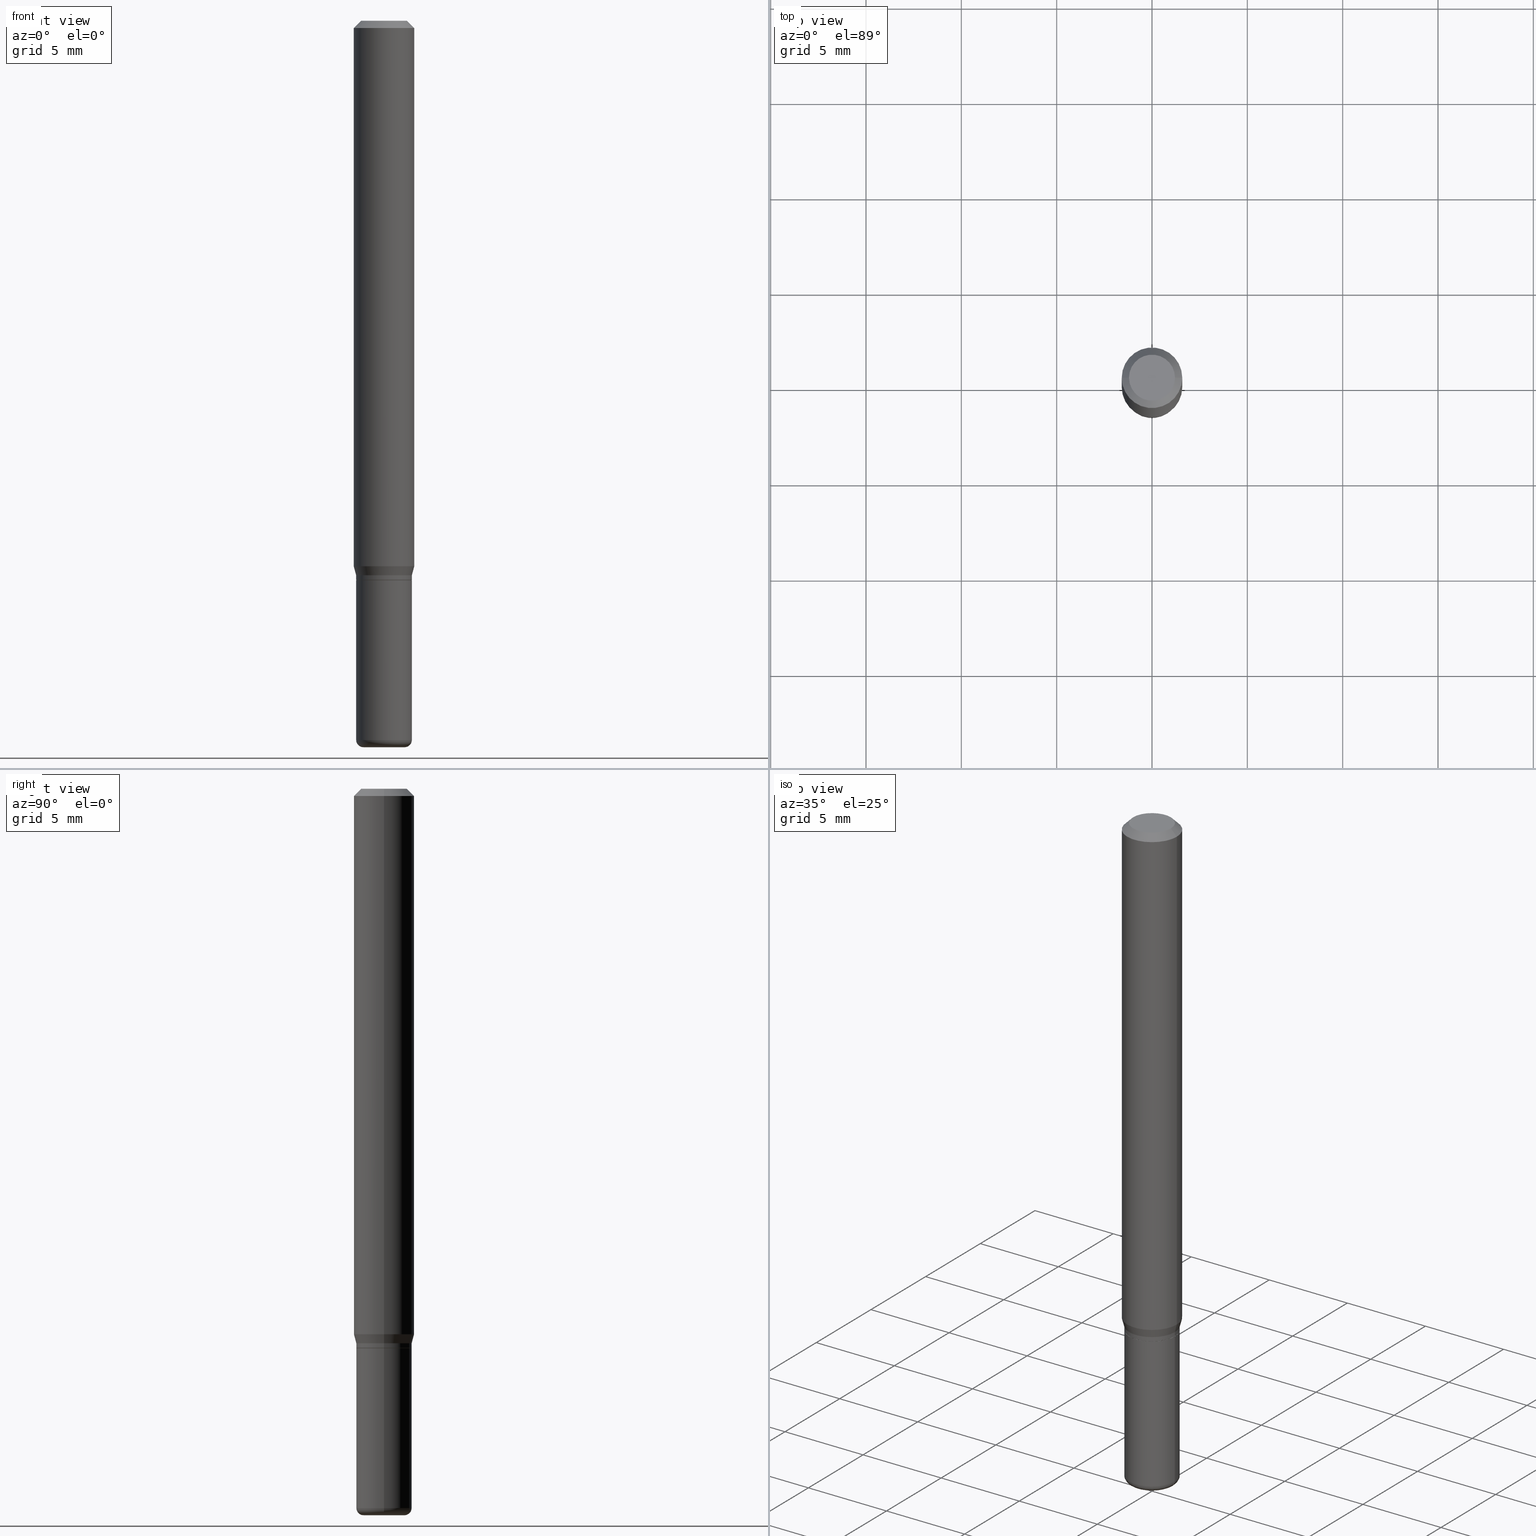
[diagram: canonical four-view strip — front | top / right | iso, engineering-drawing reading convention]
A machine part, canonical four-view strip (front | top / right | iso — engineering-drawing reading convention). The complete STEP part file that produces these views, byte-faithful:
ISO-10303-21;
HEADER;
FILE_DESCRIPTION (( 'STEP AP203' ),
    '1' );
FILE_NAME ('09251.STEP',
    '2024-03-01T00:00:59',
    ( '' ),
    ( '' ),
    'SwSTEP 2.0',
    'SolidWorks 2023',
    '' );
FILE_SCHEMA (( 'CONFIG_CONTROL_DESIGN' ));
ENDSEC;

DATA;
#1 = PRODUCT_RELATED_PRODUCT_CATEGORY ( 'detail', '', ( #122 ) ) ;
#2 = AXIS2_PLACEMENT_3D ( 'NONE', #145, #188, #191 ) ;
#3 = CARTESIAN_POINT ( 'NONE',  ( -0.05750000000000000250, -4.200193294210894862E-15, -1.155000000000000027 ) ) ;
#4 = DIRECTION ( 'NONE',  ( -2.445468806185136597E-29, 3.491481338843145583E-15, 1.000000000000000000 ) ) ;
#5 = DIRECTION ( 'NONE',  ( 1.000000000000000000, -6.982962677686266711E-15, 4.876176775795935232E-29 ) ) ;
#6 = EDGE_LOOP ( 'NONE', ( #377, #406, #460, #33 ) ) ;
#7 = PERSON_AND_ORGANIZATION_ROLE ( 'design_supplier' ) ;
#8 = AXIS2_PLACEMENT_3D ( 'NONE', #435, #236, #79 ) ;
#9 = ORIENTED_EDGE ( 'NONE', *, *, #300, .F. ) ;
#10 = LINE ( 'NONE', #383, #125 ) ;
#11 = AXIS2_PLACEMENT_3D ( 'NONE', #370, #378, #450 ) ;
#12 = APPROVAL_ROLE ( '' ) ;
#13 = APPLICATION_PROTOCOL_DEFINITION ( 'international standard', 'config_control_design', 1994, #342 ) ;
#14 = DIRECTION ( 'NONE',  ( 2.445468806185136597E-29, -3.491481338843145583E-15, -1.000000000000000000 ) ) ;
#15 = DIRECTION ( 'NONE',  ( -2.438088387897960049E-29, 3.491481338843145188E-15, 1.000000000000000000 ) ) ;
#16 = APPROVAL_ROLE ( '' ) ;
#17 = EDGE_LOOP ( 'NONE', ( #55, #132, #126, #428 ) ) ;
#18 = CARTESIAN_POINT ( 'NONE',  ( 0.04249999999999999611, -5.533997922066385616E-15, -1.500000000000000222 ) ) ;
#19 = PERSON_AND_ORGANIZATION ( #475, #137 ) ;
#20 = DIRECTION ( 'NONE',  ( 1.000000000000000000, -6.982962677686266711E-15, 0.000000000000000000 ) ) ;
#21 = ORIENTED_EDGE ( 'NONE', *, *, #244, .T. ) ;
#22 = DIRECTION ( 'NONE',  ( -2.445468806185136597E-29, 3.491481338843145583E-15, 1.000000000000000000 ) ) ;
#23 = AXIS2_PLACEMENT_3D ( 'NONE', #385, #273, #227 ) ;
#24 = PRODUCT_DEFINITION_FORMATION_WITH_SPECIFIED_SOURCE ( 'ANY', '', #122, .NOT_KNOWN. ) ;
#25 = EDGE_LOOP ( 'NONE', ( #508, #341, #224, #9 ) ) ;
#26 = DIRECTION ( 'NONE',  ( -2.445468806185136877E-29, 3.491481338843145188E-15, 1.000000000000000000 ) ) ;
#27 = EDGE_CURVE ( 'NONE', #192, #226, #403, .T. ) ;
#28 = ORIENTED_EDGE ( 'NONE', *, *, #278, .F. ) ;
#29 = CARTESIAN_POINT ( 'NONE',  ( 0.000000000000000000, 0.000000000000000000, 0.000000000000000000 ) ) ;
#30 = AXIS2_PLACEMENT_3D ( 'NONE', #172, #221, #415 ) ;
#31 = ORIENTED_EDGE ( 'NONE', *, *, #365, .T. ) ;
#32 = CARTESIAN_POINT ( 'NONE',  ( 0.05699999999999998818, -4.430689818991950396E-15, -1.155000000000000027 ) ) ;
#33 = ORIENTED_EDGE ( 'NONE', *, *, #420, .F. ) ;
#34 = CARTESIAN_POINT ( 'NONE',  ( 3.631521177184928138E-29, -5.184849788182071492E-15, -1.485000000000000098 ) ) ;
#35 = APPLICATION_CONTEXT ( 'configuration controlled 3d designs of mechanical parts and assemblies' ) ;
#36 = CARTESIAN_POINT ( 'NONE',  ( 0.05749999999999999556, -4.015203539669603161E-16, 2.803801646082662590E-30 ) ) ;
#37 = AXIS2_PLACEMENT_3D ( 'NONE', #481, #279, #437 ) ;
#38 = CIRCLE ( 'NONE', #296, 0.01499999999999998557 ) ;
#39 = FACE_OUTER_BOUND ( 'NONE', #61, .T. ) ;
#40 = EDGE_CURVE ( 'NONE', #149, #452, #71, .T. ) ;
#41 = CYLINDRICAL_SURFACE ( 'NONE', #219, 0.06250000000000000000 ) ;
#42 = DIRECTION ( 'NONE',  ( -2.445468806185136597E-29, 3.491481338843145583E-15, 1.000000000000000000 ) ) ;
#43 = EDGE_CURVE ( 'NONE', #293, #129, #54, .T. ) ;
#44 = DIRECTION ( 'NONE',  ( -2.445468806185136597E-29, 3.491481338843145583E-15, 1.000000000000000000 ) ) ;
#45 = AXIS2_PLACEMENT_3D ( 'NONE', #84, #357, #472 ) ;
#46 = CC_DESIGN_APPROVAL ( #313, ( #159 ) ) ;
#47 = CYLINDRICAL_SURFACE ( 'NONE', #366, 0.05749999999999999556 ) ;
#48 = DIRECTION ( 'NONE',  ( -2.445468806185136597E-29, 3.491481338843145583E-15, 1.000000000000000000 ) ) ;
#49 = CALENDAR_DATE ( 2024, 29, 2 ) ;
#50 = DIRECTION ( 'NONE',  ( -2.445468806185136597E-29, 3.491481338843145583E-15, 1.000000000000000000 ) ) ;
#51 = ORIENTED_EDGE ( 'NONE', *, *, #40, .T. ) ;
#52 = LINE ( 'NONE', #207, #98 ) ;
#53 = APPROVAL_DATE_TIME ( #295, #313 ) ;
#54 = CIRCLE ( 'NONE', #506, 0.06250000000000000000 ) ;
#55 = ORIENTED_EDGE ( 'NONE', *, *, #464, .T. ) ;
#56 = DIRECTION ( 'NONE',  ( -0.2588190451025211836, 5.211531920934547886E-15, 0.9659258262890679791 ) ) ;
#57 = CONICAL_SURFACE ( 'NONE', #210, 0.06250000000000000000, 0.7853981633974488341 ) ;
#58 = CALENDAR_DATE ( 2024, 29, 2 ) ;
#59 = DIRECTION ( 'NONE',  ( -0.7071067811865479058, 2.468850131082261005E-15, -0.7071067811865471286 ) ) ;
#60 = PERSON_AND_ORGANIZATION ( #475, #137 ) ;
#61 = EDGE_LOOP ( 'NONE', ( #382, #152, #31, #458 ) ) ;
#62 = PERSON_AND_ORGANIZATION ( #475, #137 ) ;
#63 = EDGE_CURVE ( 'NONE', #334, #149, #496, .T. ) ;
#64 = VERTEX_POINT ( 'NONE', #242 ) ;
#65 = FACE_OUTER_BOUND ( 'NONE', #142, .T. ) ;
#66 = CIRCLE ( 'NONE', #347, 0.06250000000000000000 ) ;
#67 = AXIS2_PLACEMENT_3D ( 'NONE', #353, #518, #315 ) ;
#68 = CC_DESIGN_APPROVAL ( #271, ( #24 ) ) ;
#69 = VECTOR ( 'NONE', #504, 39.37007874015748143 ) ;
#70 = EDGE_CURVE ( 'NONE', #343, #190, #157, .T. ) ;
#71 = LINE ( 'NONE', #338, #69 ) ;
#72 = ORIENTED_EDGE ( 'NONE', *, *, #404, .F. ) ;
#73 = LINE ( 'NONE', #32, #162 ) ;
#74 = ORIENTED_EDGE ( 'NONE', *, *, #278, .T. ) ;
#75 = ADVANCED_FACE ( 'NONE', ( #161 ), #314, .F. ) ;
#76 = ORIENTED_EDGE ( 'NONE', *, *, #362, .T. ) ;
#77 = FACE_OUTER_BOUND ( 'NONE', #25, .T. ) ;
#78 = ADVANCED_FACE ( 'NONE', ( #77 ), #237, .T. ) ;
#79 = DIRECTION ( 'NONE',  ( 1.000000000000000000, -6.982962677686269077E-15, 0.000000000000000000 ) ) ;
#80 = FACE_OUTER_BOUND ( 'NONE', #102, .T. ) ;
#81 = APPROVAL_PERSON_ORGANIZATION ( #19, #507, #12 ) ;
#82 = CARTESIAN_POINT ( 'NONE',  ( -0.06250000000000000000, -3.488504994374133608E-15, -1.126339745962155803 ) ) ;
#83 = CC_DESIGN_PERSON_AND_ORGANIZATION_ASSIGNMENT ( #451, #249, ( #159 ) ) ;
#84 = CARTESIAN_POINT ( 'NONE',  ( 3.316907271900976589E-16, 0.04750000000000000749, -2.925296391183627249E-17 ) ) ;
#85 = DIRECTION ( 'NONE',  ( 1.000000000000000000, -6.982962677686266711E-15, 4.876176775795935232E-29 ) ) ;
#86 = CC_DESIGN_PERSON_AND_ORGANIZATION_ASSIGNMENT ( #487, #364, ( #24 ) ) ;
#87 = AXIS2_PLACEMENT_3D ( 'NONE', #317, #42, #439 ) ;
#88 = CIRCLE ( 'NONE', #367, 0.05749999999999998168 ) ;
#89 = EDGE_LOOP ( 'NONE', ( #21, #494, #28, #373 ) ) ;
#90 = FACE_OUTER_BOUND ( 'NONE', #359, .T. ) ;
#91 = DIRECTION ( 'NONE',  ( -2.445468806185136597E-29, 3.491481338843145583E-15, 1.000000000000000000 ) ) ;
#92 = ADVANCED_FACE ( 'NONE', ( #517 ), #312, .T. ) ;
#93 = ORIENTED_EDGE ( 'NONE', *, *, #349, .F. ) ;
#94 = LINE ( 'NONE', #175, #280 ) ;
#95 = DIRECTION ( 'NONE',  ( 1.000000000000000000, 0.000000000000000000, 0.000000000000000000 ) ) ;
#96 = DIRECTION ( 'NONE',  ( -2.445468806185136597E-29, 3.491481338843145583E-15, 1.000000000000000000 ) ) ;
#97 = EDGE_CURVE ( 'NONE', #180, #319, #395, .T. ) ;
#98 = VECTOR ( 'NONE', #410, 39.37007874015748143 ) ;
#99 = DATE_TIME_ROLE ( 'creation_date' ) ;
#100 = ORIENTED_EDGE ( 'NONE', *, *, #276, .F. ) ;
#101 = DIRECTION ( 'NONE',  ( 2.445468806185136597E-29, -3.491481338843145583E-15, -1.000000000000000000 ) ) ;
#102 = EDGE_LOOP ( 'NONE', ( #232, #144, #105, #205 ) ) ;
#103 = CARTESIAN_POINT ( 'NONE',  ( -0.05749999999999996780, -3.589184059913344947E-15, -1.145000000000000240 ) ) ;
#104 = ORIENTED_EDGE ( 'NONE', *, *, #467, .T. ) ;
#105 = ORIENTED_EDGE ( 'NONE', *, *, #97, .F. ) ;
#106 = ORIENTED_EDGE ( 'NONE', *, *, #276, .T. ) ;
#107 = EDGE_CURVE ( 'NONE', #469, #262, #277, .T. ) ;
#108 = ORIENTED_EDGE ( 'NONE', *, *, #427, .T. ) ;
#109 = CARTESIAN_POINT ( 'NONE',  ( 0.05749999999999998168, -5.586370142149031512E-15, -1.485000000000000098 ) ) ;
#110 = AXIS2_PLACEMENT_3D ( 'NONE', #197, #479, #476 ) ;
#111 = AXIS2_PLACEMENT_3D ( 'NONE', #299, #15, #495 ) ;
#112 = CARTESIAN_POINT ( 'NONE',  ( -0.04249999999999999611, -4.855764530343345215E-15, -1.500000000000000222 ) ) ;
#113 = CARTESIAN_POINT ( 'NONE',  ( -0.04249999999999999611, -4.882869125484029039E-15, -1.485000000000000098 ) ) ;
#114 = FACE_OUTER_BOUND ( 'NONE', #259, .T. ) ;
#115 = CARTESIAN_POINT ( 'NONE',  ( 0.05750000000000000250, -4.434181300330794192E-15, -1.155000000000000027 ) ) ;
#116 = ADVANCED_FACE ( 'NONE', ( #281 ), #286, .T. ) ;
#117 = DIRECTION ( 'NONE',  ( 1.000000000000000000, -6.982962677686276177E-15, 0.000000000000000000 ) ) ;
#118 = AXIS2_PLACEMENT_3D ( 'NONE', #128, #91, #368 ) ;
#119 = AXIS2_PLACEMENT_3D ( 'NONE', #324, #461, #391 ) ;
#120 = DIRECTION ( 'NONE',  ( -2.445468806185136597E-29, 3.491481338843145583E-15, 1.000000000000000000 ) ) ;
#121 = CARTESIAN_POINT ( 'NONE',  ( 0.06250000000000000000, -4.888073874380378612E-16, -0.01499999999999970281 ) ) ;
#122 = PRODUCT ( '09251', '09251', '', ( #264 ) ) ;
#123 = DIRECTION ( 'NONE',  ( -2.445468806185136597E-29, 3.491481338843145583E-15, 1.000000000000000000 ) ) ;
#124 = CLOSED_SHELL ( 'NONE', ( #493, #116, #250, #267, #167, #443, #131, #392, #75, #282, #448, #482 ) ) ;
#125 = VECTOR ( 'NONE', #138, 39.37007874015748143 ) ;
#126 = ORIENTED_EDGE ( 'NONE', *, *, #467, .F. ) ;
#127 = CALENDAR_DATE ( 2024, 29, 2 ) ;
#128 = CARTESIAN_POINT ( 'NONE',  ( 2.800061783081981762E-29, -3.997746132975402522E-15, -1.145000000000000240 ) ) ;
#129 = VERTEX_POINT ( 'NONE', #82 ) ;
#130 = CARTESIAN_POINT ( 'NONE',  ( 0.06250000000000000000, -4.369029371579587499E-15, -1.126339745962155803 ) ) ;
#131 = ADVANCED_FACE ( 'NONE', ( #39 ), #240, .T. ) ;
#132 = ORIENTED_EDGE ( 'NONE', *, *, #462, .T. ) ;
#133 = DIRECTION ( 'NONE',  ( -6.982962677686266711E-15, -1.000000000000000000, 3.491481338843145583E-15 ) ) ;
#134 = APPROVAL_DATE_TIME ( #375, #507 ) ;
#135 = LINE ( 'NONE', #170, #146 ) ;
#136 = PRODUCT_DEFINITION_SHAPE ( 'NONE', 'NONE',  #159 ) ;
#137 = ORGANIZATION ( 'UNSPECIFIED', 'UNSPECIFIED', '' ) ;
#138 = DIRECTION ( 'NONE',  ( 0.7071067811865479058, -7.319954787623257623E-15, -0.7071067811865471286 ) ) ;
#139 = CARTESIAN_POINT ( 'NONE',  ( -0.06250000000000000000, 3.840629472727455270E-16, -0.01499999999999970281 ) ) ;
#140 = APPLICATION_PROTOCOL_DEFINITION ( 'international standard', 'config_control_design', 1994, #35 ) ;
#141 = CC_DESIGN_PERSON_AND_ORGANIZATION_ASSIGNMENT ( #332, #411, ( #425 ) ) ;
#142 = EDGE_LOOP ( 'NONE', ( #432, #449, #426, #384 ) ) ;
#143 = CARTESIAN_POINT ( 'NONE',  ( 4.015203539669885672E-16, 0.05749999999999597100, -1.155000000000000249 ) ) ;
#144 = ORIENTED_EDGE ( 'NONE', *, *, #502, .T. ) ;
#145 = CARTESIAN_POINT ( 'NONE',  ( 0.000000000000000000, 0.000000000000000000, 0.000000000000000000 ) ) ;
#146 = VECTOR ( 'NONE', #413, 39.37007874015748143 ) ;
#147 = CIRCLE ( 'NONE', #30, 0.06250000000000000000 ) ;
#148 = LOCAL_TIME ( 19, 0, 59.00000000000000000, #328 ) ;
#149 = VERTEX_POINT ( 'NONE', #348 ) ;
#150 = CYLINDRICAL_SURFACE ( 'NONE', #424, 0.05749999999999998168 ) ;
#151 = CC_DESIGN_PERSON_AND_ORGANIZATION_ASSIGNMENT ( #60, #7, ( #24 ) ) ;
#152 = ORIENTED_EDGE ( 'NONE', *, *, #234, .T. ) ;
#153 = VERTEX_POINT ( 'NONE', #3 ) ;
#154 = LINE ( 'NONE', #309, #196 ) ;
#155 = AXIS2_PLACEMENT_3D ( 'NONE', #34, #193, #346 ) ;
#156 = CC_DESIGN_SECURITY_CLASSIFICATION ( #425, ( #24 ) ) ;
#157 = CIRCLE ( 'NONE', #444, 0.04249999999999999611 ) ;
#158 = DIRECTION ( 'NONE',  ( -2.438088387897960049E-29, 3.491481338843145188E-15, 1.000000000000000000 ) ) ;
#159 = PRODUCT_DEFINITION ( 'UNKNOWN', '', #24, #398 ) ;
#160 = DIRECTION ( 'NONE',  ( -2.445468806185136597E-29, 3.491481338843145583E-15, 1.000000000000000000 ) ) ;
#161 = FACE_OUTER_BOUND ( 'NONE', #272, .T. ) ;
#162 = VECTOR ( 'NONE', #505, 39.37007874015748143 ) ;
#163 = DIRECTION ( 'NONE',  ( -2.445468806185136597E-29, 3.491481338843145583E-15, 1.000000000000000000 ) ) ;
#164 = ADVANCED_BREP_SHAPE_REPRESENTATION ( '09251', ( #503, #339, #356 ), #397 ) ;
#165 = DIRECTION ( 'NONE',  ( 1.000000000000000000, -6.982962677686258822E-15, 4.883557194083110659E-29 ) ) ;
#166 = ORIENTED_EDGE ( 'NONE', *, *, #185, .F. ) ;
#167 = ADVANCED_FACE ( 'NONE', ( #352 ), #470, .T. ) ;
#168 = DATE_TIME_ROLE ( 'classification_date' ) ;
#169 = CONICAL_SURFACE ( 'NONE', #303, 0.05749999999999996780, 0.2617993877991499074 ) ;
#170 = CARTESIAN_POINT ( 'NONE',  ( -0.05749999999999999556, 4.085620730620575753E-16, -2.828387676896570362E-30 ) ) ;
#171 = EDGE_LOOP ( 'NONE', ( #104, #345, #417, #274 ) ) ;
#172 = CARTESIAN_POINT ( 'NONE',  ( 3.668203209277632395E-31, -5.237222008264614861E-17, -0.01499999999999970281 ) ) ;
#173 = PERSON_AND_ORGANIZATION ( #475, #137 ) ;
#174 = CC_DESIGN_DATE_AND_TIME_ASSIGNMENT ( #289, #99, ( #159 ) ) ;
#175 = CARTESIAN_POINT ( 'NONE',  ( -0.05749999999999998168, 4.085620730620574767E-16, -2.828387676896570012E-30 ) ) ;
#176 = PERSON_AND_ORGANIZATION ( #475, #137 ) ;
#177 = ORIENTED_EDGE ( 'NONE', *, *, #427, .F. ) ;
#178 = FACE_OUTER_BOUND ( 'NONE', #220, .T. ) ;
#179 = CIRCLE ( 'NONE', #67, 0.04249999999999999611 ) ;
#180 = VERTEX_POINT ( 'NONE', #121 ) ;
#181 = DIRECTION ( 'NONE',  ( -2.445468806185136877E-29, 3.491481338843145188E-15, 1.000000000000000000 ) ) ;
#182 = VERTEX_POINT ( 'NONE', #283 ) ;
#183 = CARTESIAN_POINT ( 'NONE',  ( 2.824516471143833307E-29, -4.032660946363833383E-15, -1.155000000000000027 ) ) ;
#184 = ORIENTED_EDGE ( 'NONE', *, *, #292, .T. ) ;
#185 = EDGE_CURVE ( 'NONE', #214, #452, #484, .T. ) ;
#186 = ADVANCED_FACE ( 'NONE', ( #474 ), #47, .T. ) ;
#187 = EDGE_LOOP ( 'NONE', ( #430, #456, #330, #308 ) ) ;
#188 = DIRECTION ( 'NONE',  ( -2.445468806185136597E-29, 3.491481338843145583E-15, 1.000000000000000000 ) ) ;
#189 = AXIS2_PLACEMENT_3D ( 'NONE', #143, #228, #389 ) ;
#190 = VERTEX_POINT ( 'NONE', #112 ) ;
#191 = DIRECTION ( 'NONE',  ( 1.000000000000000000, -6.982962677686267499E-15, 4.876176775795935793E-29 ) ) ;
#192 = VERTEX_POINT ( 'NONE', #434 ) ;
#193 = DIRECTION ( 'NONE',  ( -2.445468806185136597E-29, 3.491481338843145583E-15, 1.000000000000000000 ) ) ;
#194 = CARTESIAN_POINT ( 'NONE',  ( 0.000000000000000000, 0.000000000000000000, 0.000000000000000000 ) ) ;
#195 = CIRCLE ( 'NONE', #321, 0.05749999999999998168 ) ;
#196 = VECTOR ( 'NONE', #473, 39.37007874015748143 ) ;
#197 = CARTESIAN_POINT ( 'NONE',  ( 3.668203209277632395E-31, -5.237222008264614861E-17, -0.01499999999999970281 ) ) ;
#198 = CARTESIAN_POINT ( 'NONE',  ( 0.000000000000000000, 0.000000000000000000, 0.000000000000000000 ) ) ;
#199 = CARTESIAN_POINT ( 'NONE',  ( 0.000000000000000000, 0.000000000000000000, 0.000000000000000000 ) ) ;
#200 = CARTESIAN_POINT ( 'NONE',  ( -0.05749999999999998168, -4.200193294210894862E-15, -1.485000000000000098 ) ) ;
#201 = CARTESIAN_POINT ( 'NONE',  ( 3.631521177184928138E-29, -5.184849788182071492E-15, -1.485000000000000098 ) ) ;
#202 = DIRECTION ( 'NONE',  ( -2.445468806185136597E-29, 3.491481338843145583E-15, 1.000000000000000000 ) ) ;
#203 = DIRECTION ( 'NONE',  ( 1.000000000000000000, -6.982962677686262766E-15, 0.000000000000000000 ) ) ;
#204 = ADVANCED_FACE ( 'NONE', ( #114 ), #235, .F. ) ;
#205 = ORIENTED_EDGE ( 'NONE', *, *, #365, .F. ) ;
#206 = APPROVAL_STATUS ( 'not_yet_approved' ) ;
#207 = CARTESIAN_POINT ( 'NONE',  ( -0.05699999999999998818, -3.627651586980576706E-15, -1.155000000000000027 ) ) ;
#208 = APPROVAL_STATUS ( 'not_yet_approved' ) ;
#209 = CLOSED_SHELL ( 'NONE', ( #78, #92, #478, #186, #501, #204 ) ) ;
#210 = AXIS2_PLACEMENT_3D ( 'NONE', #489, #101, #498 ) ;
#211 = CARTESIAN_POINT ( 'NONE',  ( 3.668203209277632395E-31, -5.237222008264614861E-17, -0.01499999999999970281 ) ) ;
#212 = CARTESIAN_POINT ( 'NONE',  ( 2.824516471143833307E-29, -4.032660946363833383E-15, -1.155000000000000027 ) ) ;
#213 = APPROVAL_DATE_TIME ( #360, #271 ) ;
#214 = VERTEX_POINT ( 'NONE', #396 ) ;
#215 = DIRECTION ( 'NONE',  ( 1.000000000000000000, -6.982962677686273810E-15, 0.000000000000000000 ) ) ;
#216 = ORIENTED_EDGE ( 'NONE', *, *, #234, .F. ) ;
#217 = PLANE ( 'NONE',  #111 ) ;
#218 = CALENDAR_DATE ( 2024, 29, 2 ) ;
#219 = AXIS2_PLACEMENT_3D ( 'NONE', #198, #477, #241 ) ;
#220 = EDGE_LOOP ( 'NONE', ( #93, #414, #108, #216 ) ) ;
#221 = DIRECTION ( 'NONE',  ( -2.445468806185136597E-29, 3.491481338843145583E-15, 1.000000000000000000 ) ) ;
#222 = AXIS2_PLACEMENT_3D ( 'NONE', #194, #160, #85 ) ;
#223 = EDGE_CURVE ( 'NONE', #269, #153, #135, .T. ) ;
#224 = ORIENTED_EDGE ( 'NONE', *, *, #244, .F. ) ;
#225 = EDGE_CURVE ( 'NONE', #182, #64, #436, .T. ) ;
#226 = VERTEX_POINT ( 'NONE', #405 ) ;
#227 = DIRECTION ( 'NONE',  ( 1.000000000000000000, -6.982962677686266711E-15, 4.852736867747365086E-29 ) ) ;
#228 = DIRECTION ( 'NONE',  ( 2.438088387897960049E-29, -3.491481338843145188E-15, -1.000000000000000000 ) ) ;
#229 = AXIS2_PLACEMENT_3D ( 'NONE', #355, #4, #401 ) ;
#230 = AXIS2_PLACEMENT_3D ( 'NONE', #211, #14, #243 ) ;
#231 = CC_DESIGN_APPROVAL ( #507, ( #425 ) ) ;
#232 = ORIENTED_EDGE ( 'NONE', *, *, #43, .T. ) ;
#233 = CYLINDRICAL_SURFACE ( 'NONE', #2, 0.05749999999999998168 ) ;
#234 = EDGE_CURVE ( 'NONE', #129, #293, #66, .T. ) ;
#235 = PLANE ( 'NONE',  #423 ) ;
#236 = DIRECTION ( 'NONE',  ( -2.445468806185136597E-29, 3.491481338843145583E-15, 1.000000000000000000 ) ) ;
#237 = TOROIDAL_SURFACE ( 'NONE', #379, 0.04249999999999999611, 0.01499999999999998557 ) ;
#238 = CIRCLE ( 'NONE', #246, 0.05699999999999998818 ) ;
#239 = LOCAL_TIME ( 19, 0, 59.00000000000000000, #291 ) ;
#240 = CYLINDRICAL_SURFACE ( 'NONE', #87, 0.06250000000000000000 ) ;
#241 = DIRECTION ( 'NONE',  ( 1.000000000000000000, -6.982962677686266711E-15, 4.876176775795935793E-29 ) ) ;
#242 = CARTESIAN_POINT ( 'NONE',  ( 0.05699999999999998818, -4.430689818991950396E-15, -1.155000000000000027 ) ) ;
#243 = DIRECTION ( 'NONE',  ( -1.000000000000000000, 6.982962677686266711E-15, 0.000000000000000000 ) ) ;
#244 = EDGE_CURVE ( 'NONE', #469, #269, #195, .T. ) ;
#245 = DIRECTION ( 'NONE',  ( -2.445468806185136597E-29, 3.491481338843145583E-15, 1.000000000000000000 ) ) ;
#246 = AXIS2_PLACEMENT_3D ( 'NONE', #212, #363, #260 ) ;
#247 =( NAMED_UNIT ( * ) SI_UNIT ( $, .STERADIAN. ) SOLID_ANGLE_UNIT ( ) );
#248 = EDGE_CURVE ( 'NONE', #452, #214, #302, .T. ) ;
#249 = PERSON_AND_ORGANIZATION_ROLE ( 'creator' ) ;
#250 = ADVANCED_FACE ( 'NONE', ( #254 ), #387, .T. ) ;
#251 = ORIENTED_EDGE ( 'NONE', *, *, #27, .F. ) ;
#252 = CARTESIAN_POINT ( 'NONE',  ( 0.05749999999999996780, -4.399266486942362543E-15, -1.145000000000000240 ) ) ;
#253 = PERSON_AND_ORGANIZATION_ROLE ( 'design_owner' ) ;
#254 = FACE_OUTER_BOUND ( 'NONE', #6, .T. ) ;
#255 = DIRECTION ( 'NONE',  ( 0.2588190451025211836, 1.565188264969622559E-15, 0.9659258262890679791 ) ) ;
#256 = APPROVAL_ROLE ( '' ) ;
#257 = VECTOR ( 'NONE', #354, 39.37007874015748143 ) ;
#258 = VECTOR ( 'NONE', #255, 39.37007874015748854 ) ;
#259 = EDGE_LOOP ( 'NONE', ( #369, #100 ) ) ;
#260 = DIRECTION ( 'NONE',  ( 1.000000000000000000, -6.982962677686266711E-15, 0.000000000000000000 ) ) ;
#261 = CARTESIAN_POINT ( 'NONE',  ( 0.000000000000000000, 0.000000000000000000, 0.000000000000000000 ) ) ;
#262 = VERTEX_POINT ( 'NONE', #115 ) ;
#263 = CARTESIAN_POINT ( 'NONE',  ( -0.06250000000000000000, -1.548394002303358444E-15, -0.01499999999999970281 ) ) ;
#264 = MECHANICAL_CONTEXT ( 'NONE', #342, 'mechanical' ) ;
#265 = EDGE_LOOP ( 'NONE', ( #72, #361, #51, #166 ) ) ;
#266 = CARTESIAN_POINT ( 'NONE',  ( 2.800061783081981762E-29, -3.997746132975402522E-15, -1.145000000000000240 ) ) ;
#267 = ADVANCED_FACE ( 'NONE', ( #80 ), #41, .T. ) ;
#268 = VECTOR ( 'NONE', #181, 39.37007874015748143 ) ;
#269 = VERTEX_POINT ( 'NONE', #200 ) ;
#270 = FACE_OUTER_BOUND ( 'NONE', #301, .T. ) ;
#271 = APPROVAL ( #206, 'UNSPECIFIED' ) ;
#272 = EDGE_LOOP ( 'NONE', ( #468, #409 ) ) ;
#273 = DIRECTION ( 'NONE',  ( -2.445468806185136597E-29, 3.491481338843145583E-15, 1.000000000000000000 ) ) ;
#274 = ORIENTED_EDGE ( 'NONE', *, *, #40, .F. ) ;
#275 = LOCAL_TIME ( 19, 0, 59.00000000000000000, #416 ) ;
#276 = EDGE_CURVE ( 'NONE', #190, #343, #179, .T. ) ;
#277 = LINE ( 'NONE', #36, #257 ) ;
#278 = EDGE_CURVE ( 'NONE', #262, #153, #412, .T. ) ;
#279 = DIRECTION ( 'NONE',  ( -2.445468806185136597E-29, 3.491481338843145583E-15, 1.000000000000000000 ) ) ;
#280 = VECTOR ( 'NONE', #26, 39.37007874015748143 ) ;
#281 = FACE_OUTER_BOUND ( 'NONE', #17, .T. ) ;
#282 = ADVANCED_FACE ( 'NONE', ( #90 ), #217, .F. ) ;
#283 = CARTESIAN_POINT ( 'NONE',  ( -0.05699999999999998818, -3.625002359806465505E-15, -1.155000000000000027 ) ) ;
#284 = LENGTH_MEASURE_WITH_UNIT ( LENGTH_MEASURE( 0.02539999999999999897 ), #480 );
#285 = AXIS2_PLACEMENT_3D ( 'NONE', #376, #48, #20 ) ;
#286 = CONICAL_SURFACE ( 'NONE', #37, 0.05699999999999998818, 0.7853981633975507526 ) ;
#287 = ORIENTED_EDGE ( 'NONE', *, *, #516, .F. ) ;
#288 = DIRECTION ( 'NONE',  ( -2.445468806185136597E-29, 3.491481338843145583E-15, 1.000000000000000000 ) ) ;
#289 = DATE_AND_TIME ( #49, #333 ) ;
#290 = LINE ( 'NONE', #103, #316 ) ;
#291 = COORDINATED_UNIVERSAL_TIME_OFFSET ( 5, 0, .BEHIND. ) ;
#292 = EDGE_CURVE ( 'NONE', #153, #262, #322, .T. ) ;
#293 = VERTEX_POINT ( 'NONE', #130 ) ;
#294 = LINE ( 'NONE', #453, #258 ) ;
#295 = DATE_AND_TIME ( #127, #275 ) ;
#296 = AXIS2_PLACEMENT_3D ( 'NONE', #113, #337, #500 ) ;
#297 = DIRECTION ( 'NONE',  ( 1.000000000000000000, -6.982962677686274599E-15, 0.000000000000000000 ) ) ;
#298 = DIRECTION ( 'NONE',  ( 0.000000000000000000, 0.000000000000000000, 1.000000000000000000 ) ) ;
#299 = CARTESIAN_POINT ( 'NONE',  ( 2.824516471143833307E-29, -4.032660946363833383E-15, -1.155000000000000027 ) ) ;
#300 = EDGE_CURVE ( 'NONE', #343, #469, #512, .T. ) ;
#301 = EDGE_LOOP ( 'NONE', ( #74, #184 ) ) ;
#302 = CIRCLE ( 'NONE', #118, 0.05749999999999996780 ) ;
#303 = AXIS2_PLACEMENT_3D ( 'NONE', #266, #96, #422 ) ;
#304 = CARTESIAN_POINT ( 'NONE',  ( 2.754428713916943180E-29, -3.932594204224195830E-15, -1.126339745962155803 ) ) ;
#305 = FACE_OUTER_BOUND ( 'NONE', #265, .T. ) ;
#306 = ORIENTED_EDGE ( 'NONE', *, *, #464, .F. ) ;
#307 = ORIENTED_EDGE ( 'NONE', *, *, #248, .T. ) ;
#308 = ORIENTED_EDGE ( 'NONE', *, *, #292, .F. ) ;
#309 = CARTESIAN_POINT ( 'NONE',  ( -0.06250000000000000000, 4.440892098500626162E-16, -3.074334431409316114E-30 ) ) ;
#310 = APPROVAL_PERSON_ORGANIZATION ( #176, #271, #16 ) ;
#311 = DIRECTION ( 'NONE',  ( 1.000000000000000000, -6.982962677686265922E-15, 4.876176775795935793E-29 ) ) ;
#312 = CYLINDRICAL_SURFACE ( 'NONE', #222, 0.05749999999999999556 ) ;
#313 = APPROVAL ( #419, 'UNSPECIFIED' ) ;
#314 = PLANE ( 'NONE',  #45 ) ;
#315 = DIRECTION ( 'NONE',  ( 1.000000000000000000, -6.982962677686276177E-15, 0.000000000000000000 ) ) ;
#316 = VECTOR ( 'NONE', #56, 39.37007874015748854 ) ;
#317 = CARTESIAN_POINT ( 'NONE',  ( 0.000000000000000000, 0.000000000000000000, 0.000000000000000000 ) ) ;
#318 =( CONVERSION_BASED_UNIT ( 'INCH', #284 ) LENGTH_UNIT ( ) NAMED_UNIT ( #442 ) );
#319 = VERTEX_POINT ( 'NONE', #263 ) ;
#320 = COORDINATED_UNIVERSAL_TIME_OFFSET ( 5, 0, .BEHIND. ) ;
#321 = AXIS2_PLACEMENT_3D ( 'NONE', #358, #50, #323 ) ;
#322 = CIRCLE ( 'NONE', #431, 0.05750000000000000250 ) ;
#323 = DIRECTION ( 'NONE',  ( 1.000000000000000000, -6.982962677686258822E-15, 0.000000000000000000 ) ) ;
#324 = CARTESIAN_POINT ( 'NONE',  ( 2.823293736740741066E-29, -4.030915205694411879E-15, -1.154500000000000304 ) ) ;
#325 = SECURITY_CLASSIFICATION_LEVEL ( 'unclassified' ) ;
#326 = EDGE_CURVE ( 'NONE', #269, #469, #88, .T. ) ;
#327 = DIRECTION ( 'NONE',  ( 1.000000000000000000, -6.982962677686258822E-15, 0.000000000000000000 ) ) ;
#328 = COORDINATED_UNIVERSAL_TIME_OFFSET ( 5, 0, .BEHIND. ) ;
#329 = CC_DESIGN_DATE_AND_TIME_ASSIGNMENT ( #408, #168, ( #425 ) ) ;
#330 = ORIENTED_EDGE ( 'NONE', *, *, #107, .T. ) ;
#331 = CARTESIAN_POINT ( 'NONE',  ( 3.631521177184928138E-29, -5.184849788182071492E-15, -1.485000000000000098 ) ) ;
#332 = PERSON_AND_ORGANIZATION ( #475, #137 ) ;
#333 = LOCAL_TIME ( 19, 0, 59.00000000000000000, #371 ) ;
#334 = VERTEX_POINT ( 'NONE', #459 ) ;
#335 = CARTESIAN_POINT ( 'NONE',  ( 0.04249999999999999611, -5.481625701983738143E-15, -1.485000000000000098 ) ) ;
#336 = ORIENTED_EDGE ( 'NONE', *, *, #326, .F. ) ;
#337 = DIRECTION ( 'NONE',  ( 7.105427357601001859E-15, 1.000000000000000000, -3.491481338843145583E-15 ) ) ;
#338 = CARTESIAN_POINT ( 'NONE',  ( 0.05749999999999998168, -4.015203539669602668E-16, 2.803801646082662240E-30 ) ) ;
#339 = MANIFOLD_SOLID_BREP ( 'Body-Move/Copy2[2]', #124 ) ;
#340 = CIRCLE ( 'NONE', #119, 0.05749999999999999556 ) ;
#341 = ORIENTED_EDGE ( 'NONE', *, *, #516, .T. ) ;
#342 = APPLICATION_CONTEXT ( 'configuration controlled 3d designs of mechanical parts and assemblies' ) ;
#343 = VERTEX_POINT ( 'NONE', #18 ) ;
#344 = FACE_OUTER_BOUND ( 'NONE', #510, .T. ) ;
#345 = ORIENTED_EDGE ( 'NONE', *, *, #404, .T. ) ;
#346 = DIRECTION ( 'NONE',  ( 1.000000000000000000, -6.982962677686258822E-15, 4.883557194083110659E-29 ) ) ;
#347 = AXIS2_PLACEMENT_3D ( 'NONE', #372, #123, #203 ) ;
#348 = CARTESIAN_POINT ( 'NONE',  ( 0.05749999999999999556, -4.432435559661372688E-15, -1.154500000000000304 ) ) ;
#349 = EDGE_CURVE ( 'NONE', #214, #129, #290, .T. ) ;
#350 = CONICAL_SURFACE ( 'NONE', #463, 0.05699999999999998818, 0.7853981633975507526 ) ;
#351 = EDGE_CURVE ( 'NONE', #226, #180, #10, .T. ) ;
#352 = FACE_OUTER_BOUND ( 'NONE', #390, .T. ) ;
#353 = CARTESIAN_POINT ( 'NONE',  ( 3.668203209277704895E-29, -5.237222008264718177E-15, -1.500000000000000222 ) ) ;
#354 = DIRECTION ( 'NONE',  ( -2.445468806185136877E-29, 3.491481338843145188E-15, 1.000000000000000000 ) ) ;
#355 = CARTESIAN_POINT ( 'NONE',  ( 2.824516471143833307E-29, -4.032660946363833383E-15, -1.155000000000000027 ) ) ;
#356 = AXIS2_PLACEMENT_3D ( 'NONE', #261, #298, #95 ) ;
#357 = DIRECTION ( 'NONE',  ( 2.438088387897960049E-29, -3.491481338843145188E-15, -1.000000000000000000 ) ) ;
#358 = CARTESIAN_POINT ( 'NONE',  ( 3.631521177184928138E-29, -5.184849788182071492E-15, -1.485000000000000098 ) ) ;
#359 = EDGE_LOOP ( 'NONE', ( #306, #445 ) ) ;
#360 = DATE_AND_TIME ( #218, #441 ) ;
#361 = ORIENTED_EDGE ( 'NONE', *, *, #63, .T. ) ;
#362 = EDGE_CURVE ( 'NONE', #319, #180, #147, .T. ) ;
#363 = DIRECTION ( 'NONE',  ( -2.445468806185136597E-29, 3.491481338843145583E-15, 1.000000000000000000 ) ) ;
#364 = PERSON_AND_ORGANIZATION_ROLE ( 'creator' ) ;
#365 = EDGE_CURVE ( 'NONE', #293, #180, #457, .T. ) ;
#366 = AXIS2_PLACEMENT_3D ( 'NONE', #199, #202, #5 ) ;
#367 = AXIS2_PLACEMENT_3D ( 'NONE', #331, #22, #327 ) ;
#368 = DIRECTION ( 'NONE',  ( 1.000000000000000000, -6.982962677686269077E-15, 0.000000000000000000 ) ) ;
#369 = ORIENTED_EDGE ( 'NONE', *, *, #70, .F. ) ;
#370 = CARTESIAN_POINT ( 'NONE',  ( -6.680649051745406845E-45, 9.538196290434862081E-31, 2.731847993664263218E-16 ) ) ;
#371 = COORDINATED_UNIVERSAL_TIME_OFFSET ( 5, 0, .BEHIND. ) ;
#372 = CARTESIAN_POINT ( 'NONE',  ( 2.754428713916943180E-29, -3.932594204224195830E-15, -1.126339745962155803 ) ) ;
#373 = ORIENTED_EDGE ( 'NONE', *, *, #107, .F. ) ;
#374 = CARTESIAN_POINT ( 'NONE',  ( 2.824516471143833307E-29, -4.032660946363833383E-15, -1.155000000000000027 ) ) ;
#375 = DATE_AND_TIME ( #58, #239 ) ;
#376 = CARTESIAN_POINT ( 'NONE',  ( 2.824516471143833307E-29, -4.032660946363833383E-15, -1.155000000000000027 ) ) ;
#377 = ORIENTED_EDGE ( 'NONE', *, *, #386, .F. ) ;
#378 = DIRECTION ( 'NONE',  ( -2.445468806185136597E-29, 3.491481338843145583E-15, 1.000000000000000000 ) ) ;
#379 = AXIS2_PLACEMENT_3D ( 'NONE', #201, #163, #165 ) ;
#380 = AXIS2_PLACEMENT_3D ( 'NONE', #335, #133, #297 ) ;
#381 = AXIS2_PLACEMENT_3D ( 'NONE', #400, #120, #440 ) ;
#382 = ORIENTED_EDGE ( 'NONE', *, *, #502, .F. ) ;
#383 = CARTESIAN_POINT ( 'NONE',  ( 0.06250000000000000000, -4.811533449433669144E-16, -0.01499999999999970281 ) ) ;
#384 = ORIENTED_EDGE ( 'NONE', *, *, #63, .F. ) ;
#385 = CARTESIAN_POINT ( 'NONE',  ( -6.680649051745406845E-45, 9.538196290434862081E-31, 2.731847993664263218E-16 ) ) ;
#386 = EDGE_CURVE ( 'NONE', #226, #192, #438, .T. ) ;
#387 = CONICAL_SURFACE ( 'NONE', #230, 0.06250000000000000000, 0.7853981633974488341 ) ;
#388 = ORIENTED_EDGE ( 'NONE', *, *, #43, .F. ) ;
#389 = DIRECTION ( 'NONE',  ( -1.000000000000000000, 6.982962677686265922E-15, -4.876176775795935793E-29 ) ) ;
#390 = EDGE_LOOP ( 'NONE', ( #307, #499, #388, #177 ) ) ;
#391 = DIRECTION ( 'NONE',  ( 1.000000000000000000, -6.982962677686274599E-15, 0.000000000000000000 ) ) ;
#392 = ADVANCED_FACE ( 'NONE', ( #407 ), #57, .T. ) ;
#393 = CARTESIAN_POINT ( 'NONE',  ( 3.582686580359766038E-29, -5.359686688179453325E-15, -1.500000000000000222 ) ) ;
#394 = FACE_OUTER_BOUND ( 'NONE', #171, .T. ) ;
#395 = CIRCLE ( 'NONE', #110, 0.06250000000000000000 ) ;
#396 = CARTESIAN_POINT ( 'NONE',  ( -0.05749999999999996780, -3.538844527143739080E-15, -1.145000000000000240 ) ) ;
#397 =( GEOMETRIC_REPRESENTATION_CONTEXT ( 3 ) GLOBAL_UNCERTAINTY_ASSIGNED_CONTEXT ( ( #447 ) ) GLOBAL_UNIT_ASSIGNED_CONTEXT ( ( #318, #513, #247 ) ) REPRESENTATION_CONTEXT ( 'NONE', 'WORKASPACE' ) );
#398 = DESIGN_CONTEXT ( 'detailed design', #35, 'design' ) ;
#399 = CARTESIAN_POINT ( 'NONE',  ( 3.668203209277704895E-29, -5.237222008264718177E-15, -1.500000000000000222 ) ) ;
#400 = CARTESIAN_POINT ( 'NONE',  ( 2.823293736740741066E-29, -4.030915205694411879E-15, -1.154500000000000304 ) ) ;
#401 = DIRECTION ( 'NONE',  ( 1.000000000000000000, -6.982962677686273810E-15, 0.000000000000000000 ) ) ;
#402 = DIRECTION ( 'NONE',  ( 1.000000000000000000, -6.982962677686269077E-15, 0.000000000000000000 ) ) ;
#403 = CIRCLE ( 'NONE', #23, 0.04750000000000000749 ) ;
#404 = EDGE_CURVE ( 'NONE', #334, #214, #94, .T. ) ;
#405 = CARTESIAN_POINT ( 'NONE',  ( 0.04750000000000000749, -4.035134999187568762E-16, 2.731847993664288856E-16 ) ) ;
#406 = ORIENTED_EDGE ( 'NONE', *, *, #351, .T. ) ;
#407 = FACE_OUTER_BOUND ( 'NONE', #490, .T. ) ;
#408 = DATE_AND_TIME ( #492, #148 ) ;
#409 = ORIENTED_EDGE ( 'NONE', *, *, #386, .T. ) ;
#410 = DIRECTION ( 'NONE',  ( -0.7071067811866199593, 7.493145998870616062E-15, 0.7071067811864750752 ) ) ;
#411 = PERSON_AND_ORGANIZATION_ROLE ( 'classification_officer' ) ;
#412 = CIRCLE ( 'NONE', #229, 0.05750000000000000250 ) ;
#413 = DIRECTION ( 'NONE',  ( -2.445468806185136877E-29, 3.491481338843145188E-15, 1.000000000000000000 ) ) ;
#414 = ORIENTED_EDGE ( 'NONE', *, *, #185, .T. ) ;
#415 = DIRECTION ( 'NONE',  ( 1.000000000000000000, -6.982962677686266711E-15, 0.000000000000000000 ) ) ;
#416 = COORDINATED_UNIVERSAL_TIME_OFFSET ( 5, 0, .BEHIND. ) ;
#417 = ORIENTED_EDGE ( 'NONE', *, *, #248, .F. ) ;
#418 = CARTESIAN_POINT ( 'NONE',  ( 0.06250000000000000000, -4.364351673553916694E-16, 3.047610484872459871E-30 ) ) ;
#419 = APPROVAL_STATUS ( 'not_yet_approved' ) ;
#420 = EDGE_CURVE ( 'NONE', #192, #319, #486, .T. ) ;
#421 = ORIENTED_EDGE ( 'NONE', *, *, #351, .F. ) ;
#422 = DIRECTION ( 'NONE',  ( 1.000000000000000000, -6.982962677686269077E-15, 0.000000000000000000 ) ) ;
#423 = AXIS2_PLACEMENT_3D ( 'NONE', #393, #158, #311 ) ;
#424 = AXIS2_PLACEMENT_3D ( 'NONE', #29, #466, #433 ) ;
#425 = SECURITY_CLASSIFICATION ( '', '', #325 ) ;
#426 = ORIENTED_EDGE ( 'NONE', *, *, #483, .T. ) ;
#427 = EDGE_CURVE ( 'NONE', #452, #293, #294, .T. ) ;
#428 = ORIENTED_EDGE ( 'NONE', *, *, #483, .F. ) ;
#429 = PLANE ( 'NONE',  #189 ) ;
#430 = ORIENTED_EDGE ( 'NONE', *, *, #223, .F. ) ;
#431 = AXIS2_PLACEMENT_3D ( 'NONE', #374, #491, #215 ) ;
#432 = ORIENTED_EDGE ( 'NONE', *, *, #462, .F. ) ;
#433 = DIRECTION ( 'NONE',  ( 1.000000000000000000, -6.982962677686267499E-15, 4.876176775795935793E-29 ) ) ;
#434 = CARTESIAN_POINT ( 'NONE',  ( -0.04750000000000000749, 3.578768372314221353E-16, 2.731847993664239060E-16 ) ) ;
#435 = CARTESIAN_POINT ( 'NONE',  ( 2.800061783081981762E-29, -3.997746132975402522E-15, -1.145000000000000240 ) ) ;
#436 = CIRCLE ( 'NONE', #285, 0.05699999999999998818 ) ;
#437 = DIRECTION ( 'NONE',  ( 1.000000000000000000, -6.982962677686266711E-15, 0.000000000000000000 ) ) ;
#438 = CIRCLE ( 'NONE', #11, 0.04750000000000000749 ) ;
#439 = DIRECTION ( 'NONE',  ( 1.000000000000000000, -6.982962677686266711E-15, 4.876176775795935793E-29 ) ) ;
#440 = DIRECTION ( 'NONE',  ( 1.000000000000000000, -6.982962677686274599E-15, 0.000000000000000000 ) ) ;
#441 = LOCAL_TIME ( 19, 0, 59.00000000000000000, #320 ) ;
#442 = DIMENSIONAL_EXPONENTS ( 1.000000000000000000, 0.000000000000000000, 0.000000000000000000, 0.000000000000000000, 0.000000000000000000, 0.000000000000000000, 0.000000000000000000 ) ;
#443 = ADVANCED_FACE ( 'NONE', ( #178 ), #169, .T. ) ;
#444 = AXIS2_PLACEMENT_3D ( 'NONE', #399, #44, #117 ) ;
#445 = ORIENTED_EDGE ( 'NONE', *, *, #225, .F. ) ;
#446 = DIRECTION ( 'NONE',  ( 1.000000000000000000, -6.982962677686266711E-15, 0.000000000000000000 ) ) ;
#447 = UNCERTAINTY_MEASURE_WITH_UNIT (LENGTH_MEASURE( 1.000000000000000082E-05 ), #318, 'distance_accuracy_value', 'NONE');
#448 = ADVANCED_FACE ( 'NONE', ( #65 ), #350, .T. ) ;
#449 = ORIENTED_EDGE ( 'NONE', *, *, #225, .T. ) ;
#450 = DIRECTION ( 'NONE',  ( 1.000000000000000000, -6.982962677686266711E-15, 4.852736867747365086E-29 ) ) ;
#451 = PERSON_AND_ORGANIZATION ( #475, #137 ) ;
#452 = VERTEX_POINT ( 'NONE', #252 ) ;
#453 = CARTESIAN_POINT ( 'NONE',  ( 0.05749999999999996780, -4.399266486942362543E-15, -1.145000000000000240 ) ) ;
#454 = SHAPE_DEFINITION_REPRESENTATION ( #136, #164 ) ;
#455 = TOROIDAL_SURFACE ( 'NONE', #155, 0.04249999999999999611, 0.01499999999999998557 ) ;
#456 = ORIENTED_EDGE ( 'NONE', *, *, #326, .T. ) ;
#457 = LINE ( 'NONE', #418, #268 ) ;
#458 = ORIENTED_EDGE ( 'NONE', *, *, #362, .F. ) ;
#459 = CARTESIAN_POINT ( 'NONE',  ( -0.05749999999999999556, -3.622353132632355093E-15, -1.154500000000000304 ) ) ;
#460 = ORIENTED_EDGE ( 'NONE', *, *, #97, .T. ) ;
#461 = DIRECTION ( 'NONE',  ( -2.445468806185136597E-29, 3.491481338843145583E-15, 1.000000000000000000 ) ) ;
#462 = EDGE_CURVE ( 'NONE', #182, #334, #52, .T. ) ;
#463 = AXIS2_PLACEMENT_3D ( 'NONE', #183, #288, #446 ) ;
#464 = EDGE_CURVE ( 'NONE', #64, #182, #238, .T. ) ;
#465 = DIRECTION ( 'NONE',  ( -2.445468806185136597E-29, 3.491481338843145583E-15, 1.000000000000000000 ) ) ;
#466 = DIRECTION ( 'NONE',  ( -2.445468806185136597E-29, 3.491481338843145583E-15, 1.000000000000000000 ) ) ;
#467 = EDGE_CURVE ( 'NONE', #149, #334, #340, .T. ) ;
#468 = ORIENTED_EDGE ( 'NONE', *, *, #27, .T. ) ;
#469 = VERTEX_POINT ( 'NONE', #109 ) ;
#470 = CONICAL_SURFACE ( 'NONE', #511, 0.05749999999999996780, 0.2617993877991499074 ) ;
#471 = VECTOR ( 'NONE', #59, 39.37007874015748143 ) ;
#472 = DIRECTION ( 'NONE',  ( -1.000000000000000000, 6.982962677686265922E-15, -4.876176775795935793E-29 ) ) ;
#473 = DIRECTION ( 'NONE',  ( -2.445468806185136877E-29, 3.491481338843145188E-15, 1.000000000000000000 ) ) ;
#474 = FACE_OUTER_BOUND ( 'NONE', #187, .T. ) ;
#475 = PERSON ( 'UNSPECIFIED', 'UNSPECIFIED', 'UNSPECIFIED', ('UNSPECIFIED'), ('UNSPECIFIED'), ('UNSPECIFIED') ) ;
#476 = DIRECTION ( 'NONE',  ( 1.000000000000000000, -6.982962677686266711E-15, 0.000000000000000000 ) ) ;
#477 = DIRECTION ( 'NONE',  ( -2.445468806185136597E-29, 3.491481338843145583E-15, 1.000000000000000000 ) ) ;
#478 = ADVANCED_FACE ( 'NONE', ( #270 ), #429, .F. ) ;
#479 = DIRECTION ( 'NONE',  ( -2.445468806185136597E-29, 3.491481338843145583E-15, 1.000000000000000000 ) ) ;
#480 =( LENGTH_UNIT ( ) NAMED_UNIT ( * ) SI_UNIT ( $, .METRE. ) );
#481 = CARTESIAN_POINT ( 'NONE',  ( 2.824516471143833307E-29, -4.032660946363833383E-15, -1.155000000000000027 ) ) ;
#482 = ADVANCED_FACE ( 'NONE', ( #305 ), #150, .T. ) ;
#483 = EDGE_CURVE ( 'NONE', #64, #149, #73, .T. ) ;
#484 = CIRCLE ( 'NONE', #8, 0.05749999999999996780 ) ;
#485 = ORIENTED_EDGE ( 'NONE', *, *, #300, .T. ) ;
#486 = LINE ( 'NONE', #139, #471 ) ;
#487 = PERSON_AND_ORGANIZATION ( #475, #137 ) ;
#488 = CC_DESIGN_PERSON_AND_ORGANIZATION_ASSIGNMENT ( #62, #253, ( #122 ) ) ;
#489 = CARTESIAN_POINT ( 'NONE',  ( 3.668203209277632395E-31, -5.237222008264614861E-17, -0.01499999999999970281 ) ) ;
#490 = EDGE_LOOP ( 'NONE', ( #421, #251, #509, #76 ) ) ;
#491 = DIRECTION ( 'NONE',  ( -2.445468806185136597E-29, 3.491481338843145583E-15, 1.000000000000000000 ) ) ;
#492 = CALENDAR_DATE ( 2024, 29, 2 ) ;
#493 = ADVANCED_FACE ( 'NONE', ( #394 ), #233, .T. ) ;
#494 = ORIENTED_EDGE ( 'NONE', *, *, #223, .T. ) ;
#495 = DIRECTION ( 'NONE',  ( 1.000000000000000000, -6.982962677686265922E-15, 4.876176775795935793E-29 ) ) ;
#496 = CIRCLE ( 'NONE', #381, 0.05749999999999999556 ) ;
#497 = APPROVAL_PERSON_ORGANIZATION ( #173, #313, #256 ) ;
#498 = DIRECTION ( 'NONE',  ( -1.000000000000000000, 6.982962677686266711E-15, 0.000000000000000000 ) ) ;
#499 = ORIENTED_EDGE ( 'NONE', *, *, #349, .T. ) ;
#500 = DIRECTION ( 'NONE',  ( -1.000000000000000000, 7.105427357600997914E-15, 0.000000000000000000 ) ) ;
#501 = ADVANCED_FACE ( 'NONE', ( #344 ), #455, .T. ) ;
#502 = EDGE_CURVE ( 'NONE', #129, #319, #154, .T. ) ;
#503 = MANIFOLD_SOLID_BREP ( 'Body-Move/Copy2[1]', #209 ) ;
#504 = DIRECTION ( 'NONE',  ( -2.445468806185136877E-29, 3.491481338843145188E-15, 1.000000000000000000 ) ) ;
#505 = DIRECTION ( 'NONE',  ( 0.7071067811866199593, -2.468850131083015945E-15, 0.7071067811864750752 ) ) ;
#506 = AXIS2_PLACEMENT_3D ( 'NONE', #304, #465, #515 ) ;
#507 = APPROVAL ( #208, 'UNSPECIFIED' ) ;
#508 = ORIENTED_EDGE ( 'NONE', *, *, #70, .T. ) ;
#509 = ORIENTED_EDGE ( 'NONE', *, *, #420, .T. ) ;
#510 = EDGE_LOOP ( 'NONE', ( #287, #106, #485, #336 ) ) ;
#511 = AXIS2_PLACEMENT_3D ( 'NONE', #514, #245, #402 ) ;
#512 = CIRCLE ( 'NONE', #380, 0.01499999999999998557 ) ;
#513 =( NAMED_UNIT ( * ) PLANE_ANGLE_UNIT ( ) SI_UNIT ( $, .RADIAN. ) );
#514 = CARTESIAN_POINT ( 'NONE',  ( 2.800061783081981762E-29, -3.997746132975402522E-15, -1.145000000000000240 ) ) ;
#515 = DIRECTION ( 'NONE',  ( 1.000000000000000000, -6.982962677686262766E-15, 0.000000000000000000 ) ) ;
#516 = EDGE_CURVE ( 'NONE', #190, #269, #38, .T. ) ;
#517 = FACE_OUTER_BOUND ( 'NONE', #89, .T. ) ;
#518 = DIRECTION ( 'NONE',  ( -2.445468806185136597E-29, 3.491481338843145583E-15, 1.000000000000000000 ) ) ;
ENDSEC;
END-ISO-10303-21;
